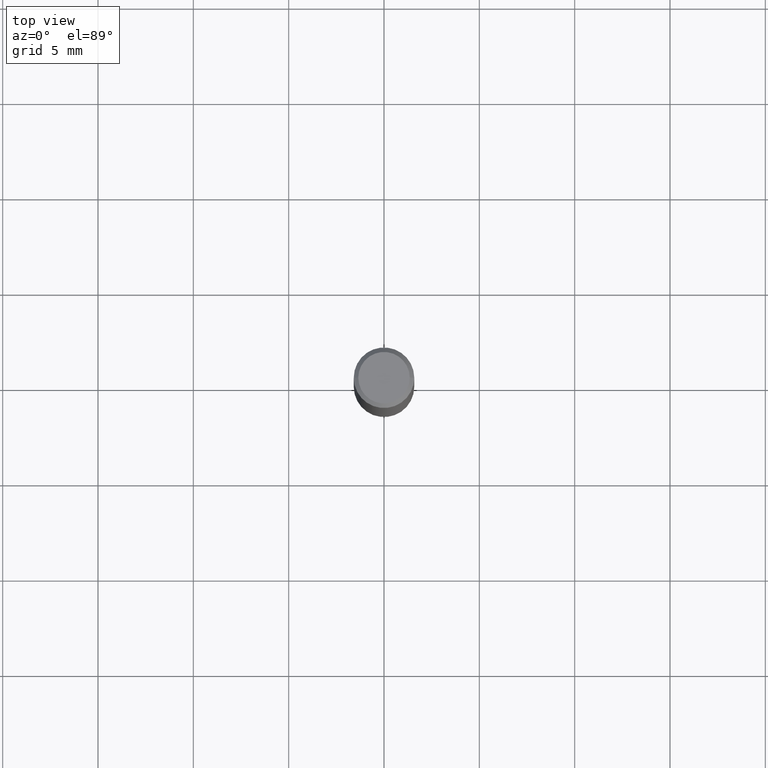
[diagram: clean part render]
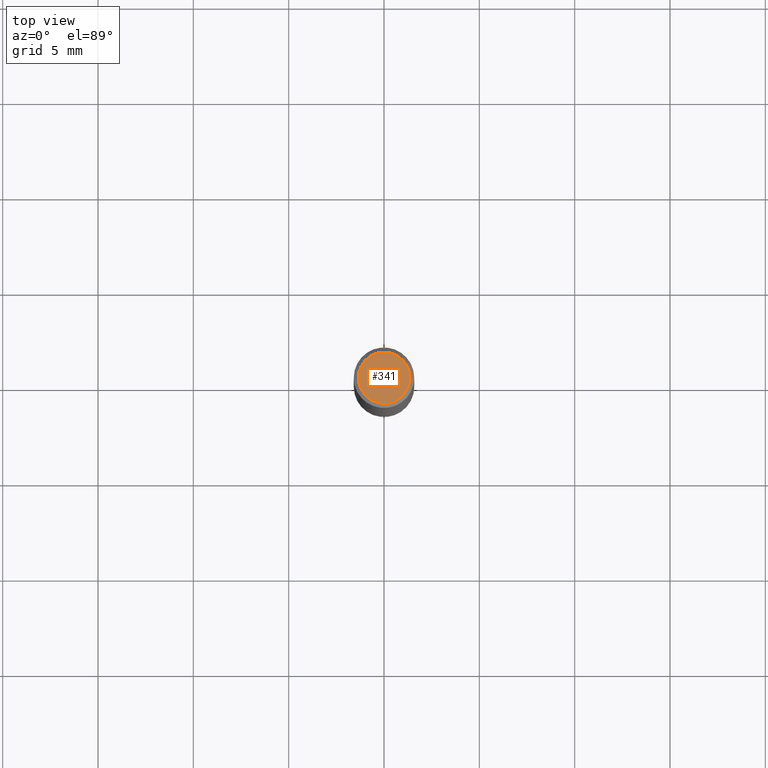
[diagram: same view with one face highlighted and labeled with its STEP entity id]
A machine part, top view. The second image highlights one B-rep face of the part: STEP entity #341.
In plain terms, the highlighted planar face has unit normal (0, -0, -1).
Its self-contained STEP definition (entity closure, byte-faithful):
#8 = PLANE ( 'NONE',  #51 ) ;
#16 = CARTESIAN_POINT ( 'NONE',  ( 0.05312499999999999861, -4.129888592719939842E-16, -5.787680772767651417E-18 ) ) ;
#26 = AXIS2_PLACEMENT_3D ( 'NONE', #147, #565, #526 ) ;
#51 = AXIS2_PLACEMENT_3D ( 'NONE', #86, #457, #511 ) ;
#75 = EDGE_CURVE ( 'NONE', #262, #530, #195, .T. ) ;
#86 = CARTESIAN_POINT ( 'NONE',  ( 7.076796394983739835E-47, -1.010378970665454992E-32, -2.893840386385196200E-18 ) ) ;
#135 = DIRECTION ( 'NONE',  ( 1.000000000000000000, -6.982962677686266711E-15, 4.875930095424100059E-29 ) ) ;
#147 = CARTESIAN_POINT ( 'NONE',  ( 1.415359278996747967E-46, -2.020757941330909984E-32, -5.787680772770392401E-18 ) ) ;
#153 = CARTESIAN_POINT ( 'NONE',  ( 1.415359278996747967E-46, -2.020757941330909984E-32, -5.787680772770392401E-18 ) ) ;
#165 = ORIENTED_EDGE ( 'NONE', *, *, #75, .T. ) ;
#184 = FACE_OUTER_BOUND ( 'NONE', #215, .T. ) ;
#195 = CIRCLE ( 'NONE', #576, 0.05312499999999999861 ) ;
#215 = EDGE_LOOP ( 'NONE', ( #165, #307 ) ) ;
#262 = VERTEX_POINT ( 'NONE', #498 ) ;
#307 = ORIENTED_EDGE ( 'NONE', *, *, #384, .T. ) ;
#314 = DIRECTION ( 'NONE',  ( -2.445468806185136597E-29, 3.491481338843145583E-15, 1.000000000000000000 ) ) ;
#341 = ADVANCED_FACE ( 'NONE', ( #184 ), #8, .F. ) ;
#384 = EDGE_CURVE ( 'NONE', #530, #262, #496, .T. ) ;
#457 = DIRECTION ( 'NONE',  ( 2.438088387897960049E-29, -3.491481338843145188E-15, -1.000000000000000000 ) ) ;
#496 = CIRCLE ( 'NONE', #26, 0.05312499999999999861 ) ;
#498 = CARTESIAN_POINT ( 'NONE',  ( -0.05312499999999999861, 3.873362110279099094E-16, -5.787680772773044021E-18 ) ) ;
#511 = DIRECTION ( 'NONE',  ( -1.000000000000000000, 6.982962677686265922E-15, -4.876176775795935793E-29 ) ) ;
#526 = DIRECTION ( 'NONE',  ( 1.000000000000000000, -6.982962677686266711E-15, 4.875930095424100059E-29 ) ) ;
#530 = VERTEX_POINT ( 'NONE', #16 ) ;
#565 = DIRECTION ( 'NONE',  ( -2.445468806185136597E-29, 3.491481338843145583E-15, 1.000000000000000000 ) ) ;
#576 = AXIS2_PLACEMENT_3D ( 'NONE', #153, #314, #135 ) ;